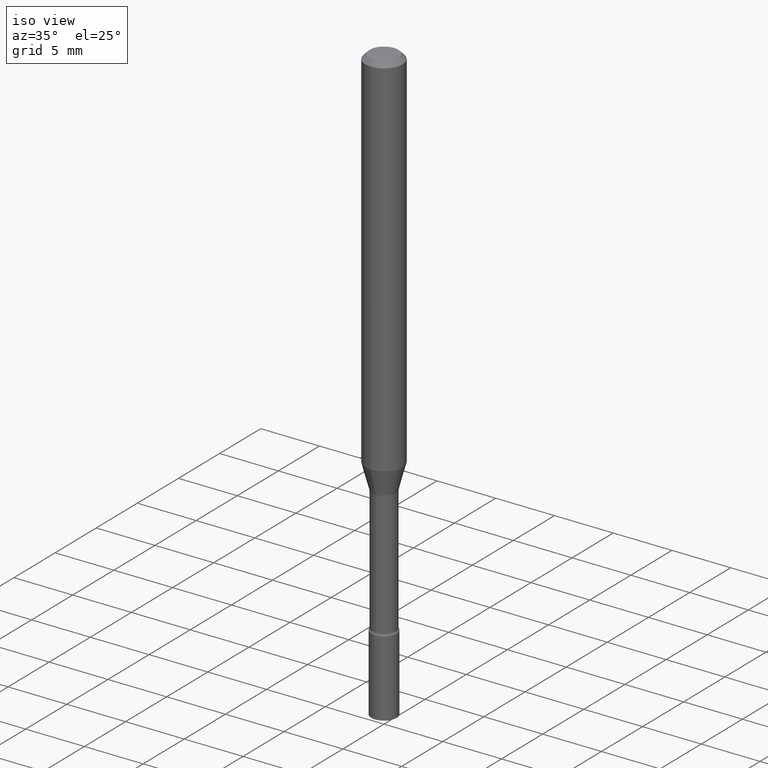
[diagram: clean part render]
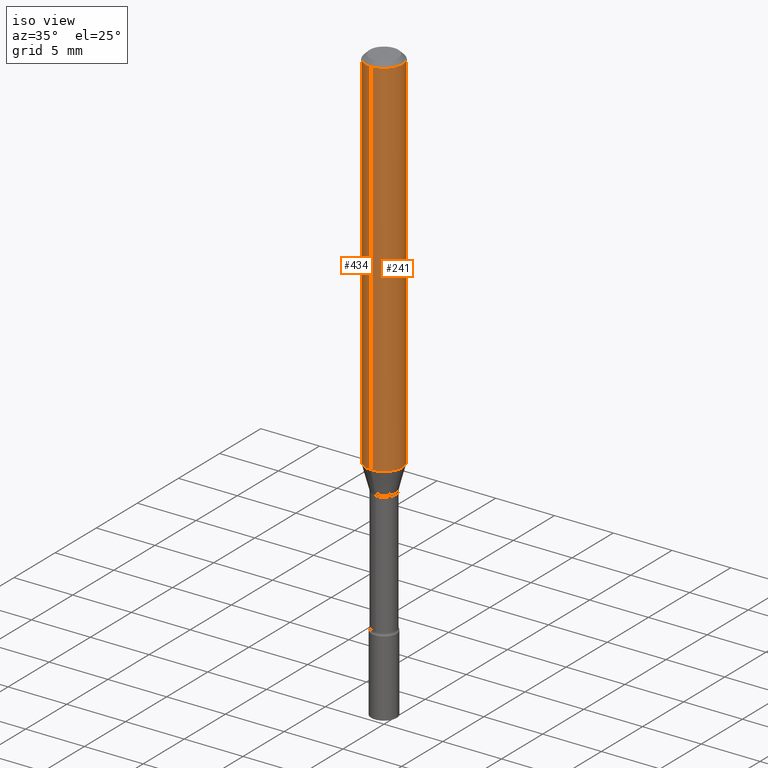
[diagram: same view with one multi-face feature highlighted, each face labeled with its STEP entity id]
A machine part, iso view. The highlighted faces form ONE feature: a constant-radius fillet chain: 2 tangent blend faces with common blend radius 1.5875 mm. The faces share edges in the B-rep.
Their STEP definitions:
[1] entity #434 (Cylinder):
#9 = EDGE_CURVE ( 'NONE', #196, #464, #26, .T. ) ;
#19 = CIRCLE ( 'NONE', #397, 0.06250000000000000000 ) ;
#25 = ORIENTED_EDGE ( 'NONE', *, *, #376, .F. ) ;
#26 = CIRCLE ( 'NONE', #417, 0.06250000000000000000 ) ;
#38 = ORIENTED_EDGE ( 'NONE', *, *, #373, .F. ) ;
#48 = CARTESIAN_POINT ( 'NONE',  ( 4.440892098500929873E-16, 0.06249999999999572564, -1.235842254289322373 ) ) ;
#65 = CARTESIAN_POINT ( 'NONE',  ( 3.668168173929956814E-31, -5.237272180876803123E-17, -0.01500000000000003067 ) ) ;
#70 = VECTOR ( 'NONE', #431, 39.37007874015748143 ) ;
#93 = CARTESIAN_POINT ( 'NONE',  ( 3.022184816787956639E-29, -4.314961505561019667E-15, -1.235842254289322151 ) ) ;
#122 = DIRECTION ( 'NONE',  ( -6.982962677686265922E-15, -1.000000000000000000, 3.483106191921935554E-15 ) ) ;
#159 = CARTESIAN_POINT ( 'NONE',  ( -4.364351673553916201E-16, -0.06250000000000000000, 2.182196742031996864E-16 ) ) ;
#162 = ORIENTED_EDGE ( 'NONE', *, *, #383, .T. ) ;
#175 = DIRECTION ( 'NONE',  ( -2.445445449286633018E-29, 3.491514787251194982E-15, 1.000000000000000000 ) ) ;
#177 = AXIS2_PLACEMENT_3D ( 'NONE', #415, #175, #292 ) ;
#183 = DIRECTION ( 'NONE',  ( -2.445445449286633018E-29, 3.491514787251194982E-15, 1.000000000000000000 ) ) ;
#196 = VERTEX_POINT ( 'NONE', #48 ) ;
#198 = LINE ( 'NONE', #363, #278 ) ;
#202 = VERTEX_POINT ( 'NONE', #318 ) ;
#209 = CARTESIAN_POINT ( 'NONE',  ( -4.364351673553912750E-16, -0.06250000000000005551, -0.01499999999999981209 ) ) ;
#217 = FACE_OUTER_BOUND ( 'NONE', #390, .T. ) ;
#248 = CARTESIAN_POINT ( 'NONE',  ( -4.364351673553612490E-16, -0.06250000000000427436, -1.235842254289321929 ) ) ;
#278 = VECTOR ( 'NONE', #518, 39.37007874015748143 ) ;
#292 = DIRECTION ( 'NONE',  ( -6.982962677686265922E-15, -1.000000000000000000, 3.491514787251194982E-15 ) ) ;
#309 = VERTEX_POINT ( 'NONE', #209 ) ;
#318 = CARTESIAN_POINT ( 'NONE',  ( 4.440892098500929873E-16, 0.06249999999999995143, -0.01500000000000024751 ) ) ;
#345 = ORIENTED_EDGE ( 'NONE', *, *, #9, .T. ) ;
#361 = LINE ( 'NONE', #159, #70 ) ;
#363 = CARTESIAN_POINT ( 'NONE',  ( 4.440892098500625669E-16, 0.06250000000000000000, -2.182196742031996864E-16 ) ) ;
#371 = CYLINDRICAL_SURFACE ( 'NONE', #177, 0.06250000000000000000 ) ;
#373 = EDGE_CURVE ( 'NONE', #202, #309, #19, .T. ) ;
#376 = EDGE_CURVE ( 'NONE', #196, #202, #198, .T. ) ;
#383 = EDGE_CURVE ( 'NONE', #464, #309, #361, .T. ) ;
#390 = EDGE_LOOP ( 'NONE', ( #25, #345, #162, #38 ) ) ;
#397 = AXIS2_PLACEMENT_3D ( 'NONE', #65, #183, #122 ) ;
#415 = CARTESIAN_POINT ( 'NONE',  ( 0.000000000000000000, 0.000000000000000000, 0.000000000000000000 ) ) ;
#416 = DIRECTION ( 'NONE',  ( -2.445445449286633018E-29, 3.491514787251194982E-15, 1.000000000000000000 ) ) ;
#417 = AXIS2_PLACEMENT_3D ( 'NONE', #93, #416, #506 ) ;
#431 = DIRECTION ( 'NONE',  ( -2.445445449286633018E-29, 3.491514787251194982E-15, 1.000000000000000000 ) ) ;
#434 = ADVANCED_FACE ( 'NONE', ( #217 ), #371, .T. ) ;
#464 = VERTEX_POINT ( 'NONE', #248 ) ;
#506 = DIRECTION ( 'NONE',  ( -6.982962677686265922E-15, -1.000000000000000000, 4.370956789862821150E-15 ) ) ;
#518 = DIRECTION ( 'NONE',  ( -2.445445449286633018E-29, 3.491514787251194982E-15, 1.000000000000000000 ) ) ;
[2] entity #241 (Cylinder):
#10 = DIRECTION ( 'NONE',  ( -2.445445449286633018E-29, 3.491514787251194982E-15, 1.000000000000000000 ) ) ;
#16 = AXIS2_PLACEMENT_3D ( 'NONE', #81, #437, #123 ) ;
#23 = CARTESIAN_POINT ( 'NONE',  ( 3.022184816787956639E-29, -4.314961505561019667E-15, -1.235842254289322151 ) ) ;
#41 = CIRCLE ( 'NONE', #484, 0.06250000000000000000 ) ;
#48 = CARTESIAN_POINT ( 'NONE',  ( 4.440892098500929873E-16, 0.06249999999999572564, -1.235842254289322373 ) ) ;
#70 = VECTOR ( 'NONE', #431, 39.37007874015748143 ) ;
#73 = EDGE_CURVE ( 'NONE', #464, #196, #450, .T. ) ;
#81 = CARTESIAN_POINT ( 'NONE',  ( 0.000000000000000000, 0.000000000000000000, 0.000000000000000000 ) ) ;
#123 = DIRECTION ( 'NONE',  ( -6.982962677686265922E-15, -1.000000000000000000, 3.491514787251194982E-15 ) ) ;
#143 = EDGE_LOOP ( 'NONE', ( #502, #462, #475, #240 ) ) ;
#159 = CARTESIAN_POINT ( 'NONE',  ( -4.364351673553916201E-16, -0.06250000000000000000, 2.182196742031996864E-16 ) ) ;
#196 = VERTEX_POINT ( 'NONE', #48 ) ;
#198 = LINE ( 'NONE', #363, #278 ) ;
#202 = VERTEX_POINT ( 'NONE', #318 ) ;
#203 = CYLINDRICAL_SURFACE ( 'NONE', #16, 0.06250000000000000000 ) ;
#209 = CARTESIAN_POINT ( 'NONE',  ( -4.364351673553912750E-16, -0.06250000000000005551, -0.01499999999999981209 ) ) ;
#240 = ORIENTED_EDGE ( 'NONE', *, *, #383, .F. ) ;
#241 = ADVANCED_FACE ( 'NONE', ( #246 ), #203, .T. ) ;
#246 = FACE_OUTER_BOUND ( 'NONE', #143, .T. ) ;
#248 = CARTESIAN_POINT ( 'NONE',  ( -4.364351673553612490E-16, -0.06250000000000427436, -1.235842254289321929 ) ) ;
#255 = DIRECTION ( 'NONE',  ( -2.445445449286633018E-29, 3.491514787251194982E-15, 1.000000000000000000 ) ) ;
#278 = VECTOR ( 'NONE', #518, 39.37007874015748143 ) ;
#287 = CARTESIAN_POINT ( 'NONE',  ( 3.668168173929956814E-31, -5.237272180876803123E-17, -0.01500000000000003067 ) ) ;
#309 = VERTEX_POINT ( 'NONE', #209 ) ;
#318 = CARTESIAN_POINT ( 'NONE',  ( 4.440892098500929873E-16, 0.06249999999999995143, -0.01500000000000024751 ) ) ;
#361 = LINE ( 'NONE', #159, #70 ) ;
#363 = CARTESIAN_POINT ( 'NONE',  ( 4.440892098500625669E-16, 0.06250000000000000000, -2.182196742031996864E-16 ) ) ;
#376 = EDGE_CURVE ( 'NONE', #196, #202, #198, .T. ) ;
#383 = EDGE_CURVE ( 'NONE', #464, #309, #361, .T. ) ;
#411 = DIRECTION ( 'NONE',  ( -6.982962677686265922E-15, -1.000000000000000000, 4.370956789862821150E-15 ) ) ;
#423 = EDGE_CURVE ( 'NONE', #309, #202, #41, .T. ) ;
#431 = DIRECTION ( 'NONE',  ( -2.445445449286633018E-29, 3.491514787251194982E-15, 1.000000000000000000 ) ) ;
#437 = DIRECTION ( 'NONE',  ( -2.445445449286633018E-29, 3.491514787251194982E-15, 1.000000000000000000 ) ) ;
#449 = DIRECTION ( 'NONE',  ( -6.982962677686265922E-15, -1.000000000000000000, 3.483106191921935554E-15 ) ) ;
#450 = CIRCLE ( 'NONE', #459, 0.06250000000000000000 ) ;
#459 = AXIS2_PLACEMENT_3D ( 'NONE', #23, #255, #411 ) ;
#462 = ORIENTED_EDGE ( 'NONE', *, *, #376, .T. ) ;
#464 = VERTEX_POINT ( 'NONE', #248 ) ;
#475 = ORIENTED_EDGE ( 'NONE', *, *, #423, .F. ) ;
#484 = AXIS2_PLACEMENT_3D ( 'NONE', #287, #10, #449 ) ;
#502 = ORIENTED_EDGE ( 'NONE', *, *, #73, .T. ) ;
#518 = DIRECTION ( 'NONE',  ( -2.445445449286633018E-29, 3.491514787251194982E-15, 1.000000000000000000 ) ) ;